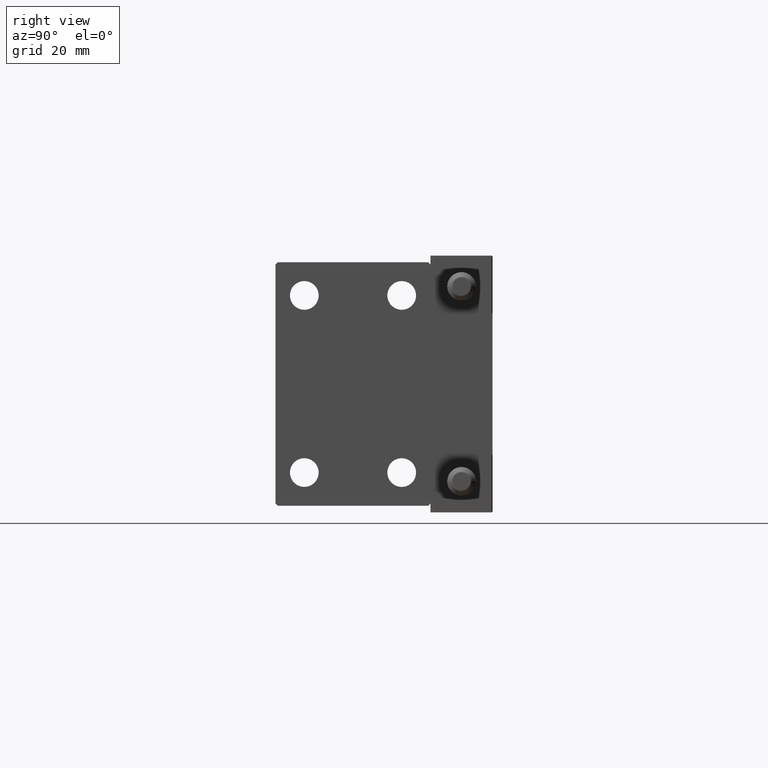
[diagram: clean part render]
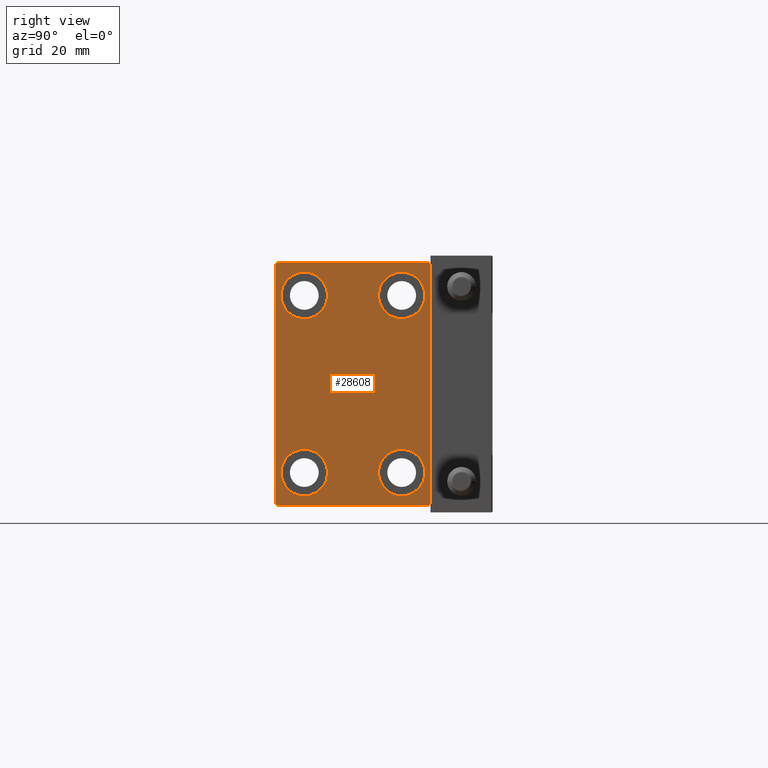
[diagram: same view with one face highlighted and labeled with its STEP entity id]
A machine part, right view. The second image highlights one B-rep face of the part: STEP entity #28608.
In plain terms, the highlighted planar face has unit normal (1, 0, 0).
Its self-contained STEP definition (entity closure, byte-faithful):
#647 = LINE ( 'NONE', #16201, #21591 ) ;
#1184 = CARTESIAN_POINT ( 'NONE',  ( 56.00000000000000000, -11.00000000000000355, 20.00000000000000000 ) ) ;
#1192 = CARTESIAN_POINT ( 'NONE',  ( 56.00000000000000000, 17.50000000000000711, -27.00000000000000355 ) ) ;
#2359 = ORIENTED_EDGE ( 'NONE', *, *, #5725, .T. ) ;
#2387 = VERTEX_POINT ( 'NONE', #43101 ) ;
#2655 = ORIENTED_EDGE ( 'NONE', *, *, #46651, .T. ) ;
#3201 = ORIENTED_EDGE ( 'NONE', *, *, #24582, .T. ) ;
#3229 = EDGE_CURVE ( 'NONE', #6748, #36708, #14350, .T. ) ;
#3535 = ORIENTED_EDGE ( 'NONE', *, *, #5372, .T. ) ;
#3954 = CARTESIAN_POINT ( 'NONE',  ( 56.00000000000000000, -17.50000000000000000, -26.99999999999999645 ) ) ;
#4540 = CIRCLE ( 'NONE', #33842, 5.250000000000000888 ) ;
#4624 = AXIS2_PLACEMENT_3D ( 'NONE', #48338, #13389, #28966 ) ;
#5020 = DIRECTION ( 'NONE',  ( 0.000000000000000000, 0.000000000000000000, 1.000000000000000000 ) ) ;
#5372 = EDGE_CURVE ( 'NONE', #40715, #18841, #647, .T. ) ;
#5725 = EDGE_CURVE ( 'NONE', #42141, #25393, #4540, .T. ) ;
#5734 = VERTEX_POINT ( 'NONE', #38608 ) ;
#6202 = AXIS2_PLACEMENT_3D ( 'NONE', #49247, #14299, #45442 ) ;
#6273 = EDGE_CURVE ( 'NONE', #23071, #15058, #10229, .T. ) ;
#6612 = ORIENTED_EDGE ( 'NONE', *, *, #9948, .T. ) ;
#6748 = VERTEX_POINT ( 'NONE', #28076 ) ;
#7500 = VECTOR ( 'NONE', #32608, 1000.000000000000114 ) ;
#7582 = ORIENTED_EDGE ( 'NONE', *, *, #42896, .T. ) ;
#7907 = VECTOR ( 'NONE', #21343, 1000.000000000000114 ) ;
#8007 = DIRECTION ( 'NONE',  ( 0.000000000000000000, 0.000000000000000000, 1.000000000000000000 ) ) ;
#8743 = DIRECTION ( 'NONE',  ( -1.000000000000000000, -0.000000000000000000, -0.000000000000000000 ) ) ;
#8802 = ORIENTED_EDGE ( 'NONE', *, *, #6273, .T. ) ;
#9914 = VECTOR ( 'NONE', #25652, 1000.000000000000114 ) ;
#9941 = EDGE_LOOP ( 'NONE', ( #25431, #2359 ) ) ;
#9948 = EDGE_CURVE ( 'NONE', #5734, #39363, #25509, .T. ) ;
#10185 = CARTESIAN_POINT ( 'NONE',  ( 56.00000000000000000, 11.00000000000000355, -20.00000000000000000 ) ) ;
#10229 = CIRCLE ( 'NONE', #49333, 5.250000000000000888 ) ;
#10342 = PLANE ( 'NONE',  #36800 ) ;
#10384 = CARTESIAN_POINT ( 'NONE',  ( 56.00000000000000000, -11.00000000000000355, 25.25000000000000000 ) ) ;
#10499 = DIRECTION ( 'NONE',  ( 0.000000000000000000, 1.000000000000000000, 0.000000000000000000 ) ) ;
#10902 = LINE ( 'NONE', #22661, #46063 ) ;
#11182 = AXIS2_PLACEMENT_3D ( 'NONE', #1184, #24416, #5020 ) ;
#11530 = LINE ( 'NONE', #13891, #9914 ) ;
#11819 = VERTEX_POINT ( 'NONE', #43793 ) ;
#12655 = EDGE_CURVE ( 'NONE', #33447, #5734, #37128, .T. ) ;
#13389 = DIRECTION ( 'NONE',  ( -1.000000000000000000, -0.000000000000000000, -0.000000000000000000 ) ) ;
#13576 = ORIENTED_EDGE ( 'NONE', *, *, #27676, .T. ) ;
#13891 = CARTESIAN_POINT ( 'NONE',  ( 56.00000000000000000, -22.25000000000000355, -22.25000000000000355 ) ) ;
#14053 = CIRCLE ( 'NONE', #24669, 5.250000000000000888 ) ;
#14070 = CARTESIAN_POINT ( 'NONE',  ( 56.00000000000000000, -11.00000000000000355, -14.75000000000000000 ) ) ;
#14299 = DIRECTION ( 'NONE',  ( -1.000000000000000000, -0.000000000000000000, -0.000000000000000000 ) ) ;
#14350 = CIRCLE ( 'NONE', #6202, 5.250000000000000888 ) ;
#14858 = EDGE_CURVE ( 'NONE', #2387, #26703, #24256, .T. ) ;
#15058 = VERTEX_POINT ( 'NONE', #23442 ) ;
#15662 = VERTEX_POINT ( 'NONE', #34723 ) ;
#16201 = CARTESIAN_POINT ( 'NONE',  ( 56.00000000000000000, 17.50000000000000711, -27.50000000000000355 ) ) ;
#16522 = CARTESIAN_POINT ( 'NONE',  ( 56.00000000000000000, -11.00000000000000355, 20.00000000000000000 ) ) ;
#18093 = DIRECTION ( 'NONE',  ( -1.000000000000000000, -0.000000000000000000, -0.000000000000000000 ) ) ;
#18508 = DIRECTION ( 'NONE',  ( 1.000000000000000000, 0.000000000000000000, 0.000000000000000000 ) ) ;
#18841 = VERTEX_POINT ( 'NONE', #23359 ) ;
#19307 = CARTESIAN_POINT ( 'NONE',  ( 56.00000000000000000, 11.00000000000000355, -25.25000000000000000 ) ) ;
#19615 = VERTEX_POINT ( 'NONE', #36687 ) ;
#20731 = DIRECTION ( 'NONE',  ( 0.000000000000000000, 0.000000000000000000, 1.000000000000000000 ) ) ;
#21343 = DIRECTION ( 'NONE',  ( 0.000000000000000000, -0.7071067811865474617, -0.7071067811865474617 ) ) ;
#21533 = DIRECTION ( 'NONE',  ( -0.000000000000000000, 0.7071067811865474617, 0.7071067811865474617 ) ) ;
#21575 = FACE_BOUND ( 'NONE', #32125, .T. ) ;
#21591 = VECTOR ( 'NONE', #27936, 1000.000000000000000 ) ;
#21620 = EDGE_LOOP ( 'NONE', ( #2655, #8802 ) ) ;
#21959 = AXIS2_PLACEMENT_3D ( 'NONE', #10185, #18093, #25759 ) ;
#22021 = EDGE_CURVE ( 'NONE', #26703, #2387, #47210, .T. ) ;
#22094 = CARTESIAN_POINT ( 'NONE',  ( 56.00000000000000000, 0.000000000000000000, 0.000000000000000000 ) ) ;
#22160 = DIRECTION ( 'NONE',  ( 0.000000000000000000, -1.000000000000000000, -1.982541115402065110E-16 ) ) ;
#22603 = FACE_BOUND ( 'NONE', #9941, .T. ) ;
#22661 = CARTESIAN_POINT ( 'NONE',  ( 56.00000000000000000, 17.50000000000000000, 27.50000000000000355 ) ) ;
#23071 = VERTEX_POINT ( 'NONE', #10384 ) ;
#23359 = CARTESIAN_POINT ( 'NONE',  ( 56.00000000000000000, 17.50000000000000000, 26.99999999999999645 ) ) ;
#23442 = CARTESIAN_POINT ( 'NONE',  ( 56.00000000000000000, -11.00000000000000355, 14.75000000000000000 ) ) ;
#23461 = AXIS2_PLACEMENT_3D ( 'NONE', #48429, #44878, #25251 ) ;
#24256 = CIRCLE ( 'NONE', #23461, 5.250000000000000888 ) ;
#24416 = DIRECTION ( 'NONE',  ( -1.000000000000000000, -0.000000000000000000, -0.000000000000000000 ) ) ;
#24582 = EDGE_CURVE ( 'NONE', #11819, #40715, #41159, .T. ) ;
#24669 = AXIS2_PLACEMENT_3D ( 'NONE', #28120, #8743, #20731 ) ;
#25029 = CIRCLE ( 'NONE', #11182, 5.250000000000000888 ) ;
#25236 = CARTESIAN_POINT ( 'NONE',  ( 56.00000000000000000, 22.25000000000000355, 22.25000000000000355 ) ) ;
#25251 = DIRECTION ( 'NONE',  ( 0.000000000000000000, 0.000000000000000000, 1.000000000000000000 ) ) ;
#25393 = VERTEX_POINT ( 'NONE', #39721 ) ;
#25431 = ORIENTED_EDGE ( 'NONE', *, *, #45994, .T. ) ;
#25509 = LINE ( 'NONE', #34153, #27351 ) ;
#25652 = DIRECTION ( 'NONE',  ( -0.000000000000000000, 0.7071067811865474617, -0.7071067811865474617 ) ) ;
#25759 = DIRECTION ( 'NONE',  ( 0.000000000000000000, 0.000000000000000000, 1.000000000000000000 ) ) ;
#26031 = DIRECTION ( 'NONE',  ( 0.000000000000000000, 0.000000000000000000, -1.000000000000000000 ) ) ;
#26177 = FACE_BOUND ( 'NONE', #21620, .T. ) ;
#26703 = VERTEX_POINT ( 'NONE', #19307 ) ;
#27147 = DIRECTION ( 'NONE',  ( -1.000000000000000000, -0.000000000000000000, -0.000000000000000000 ) ) ;
#27280 = EDGE_CURVE ( 'NONE', #18841, #15662, #36186, .T. ) ;
#27351 = VECTOR ( 'NONE', #26031, 1000.000000000000000 ) ;
#27676 = EDGE_CURVE ( 'NONE', #39363, #19615, #11530, .T. ) ;
#27936 = DIRECTION ( 'NONE',  ( 0.000000000000000000, -1.261617073437677752E-16, 1.000000000000000000 ) ) ;
#28076 = CARTESIAN_POINT ( 'NONE',  ( 56.00000000000000000, -11.00000000000000355, -25.25000000000000000 ) ) ;
#28120 = CARTESIAN_POINT ( 'NONE',  ( 56.00000000000000000, -11.00000000000000355, -20.00000000000000000 ) ) ;
#28572 = VECTOR ( 'NONE', #21533, 1000.000000000000114 ) ;
#28608 = ADVANCED_FACE ( 'NONE', ( #21575, #26177, #22603, #37876, #38142 ), #10342, .T. ) ;
#28966 = DIRECTION ( 'NONE',  ( 0.000000000000000000, 0.000000000000000000, 1.000000000000000000 ) ) ;
#30325 = ORIENTED_EDGE ( 'NONE', *, *, #3229, .T. ) ;
#32125 = EDGE_LOOP ( 'NONE', ( #42826, #47126 ) ) ;
#32368 = ORIENTED_EDGE ( 'NONE', *, *, #12655, .T. ) ;
#32461 = ORIENTED_EDGE ( 'NONE', *, *, #35742, .T. ) ;
#32608 = DIRECTION ( 'NONE',  ( -0.000000000000000000, -0.7071067811865474617, 0.7071067811865474617 ) ) ;
#32810 = ORIENTED_EDGE ( 'NONE', *, *, #27280, .T. ) ;
#33447 = VERTEX_POINT ( 'NONE', #43707 ) ;
#33842 = AXIS2_PLACEMENT_3D ( 'NONE', #39602, #27147, #8007 ) ;
#34051 = DIRECTION ( 'NONE',  ( 0.000000000000000000, 0.000000000000000000, -1.000000000000000000 ) ) ;
#34153 = CARTESIAN_POINT ( 'NONE',  ( 56.00000000000000000, -17.50000000000000000, 27.49999999999999645 ) ) ;
#34723 = CARTESIAN_POINT ( 'NONE',  ( 56.00000000000000000, 16.99999999999999289, 27.50000000000000355 ) ) ;
#34915 = ORIENTED_EDGE ( 'NONE', *, *, #35881, .T. ) ;
#35742 = EDGE_CURVE ( 'NONE', #36708, #6748, #14053, .T. ) ;
#35881 = EDGE_CURVE ( 'NONE', #19615, #11819, #36759, .T. ) ;
#36186 = LINE ( 'NONE', #25236, #7500 ) ;
#36539 = EDGE_LOOP ( 'NONE', ( #30325, #32461 ) ) ;
#36687 = CARTESIAN_POINT ( 'NONE',  ( 56.00000000000000000, -16.99999999999999289, -27.50000000000000355 ) ) ;
#36708 = VERTEX_POINT ( 'NONE', #14070 ) ;
#36759 = LINE ( 'NONE', #41108, #42581 ) ;
#36800 = AXIS2_PLACEMENT_3D ( 'NONE', #22094, #18508, #34051 ) ;
#37128 = LINE ( 'NONE', #40971, #7907 ) ;
#37876 = FACE_BOUND ( 'NONE', #36539, .T. ) ;
#38142 = FACE_OUTER_BOUND ( 'NONE', #44561, .T. ) ;
#38608 = CARTESIAN_POINT ( 'NONE',  ( 56.00000000000000000, -17.50000000000000000, 26.99999999999998934 ) ) ;
#39363 = VERTEX_POINT ( 'NONE', #3954 ) ;
#39602 = CARTESIAN_POINT ( 'NONE',  ( 56.00000000000000000, 11.00000000000000355, 20.00000000000000000 ) ) ;
#39721 = CARTESIAN_POINT ( 'NONE',  ( 56.00000000000000000, 11.00000000000000355, 14.75000000000000000 ) ) ;
#40715 = VERTEX_POINT ( 'NONE', #1192 ) ;
#40971 = CARTESIAN_POINT ( 'NONE',  ( 56.00000000000000000, -22.24999999999999645, 22.24999999999999645 ) ) ;
#41108 = CARTESIAN_POINT ( 'NONE',  ( 56.00000000000000000, -17.50000000000000000, -27.50000000000000355 ) ) ;
#41159 = LINE ( 'NONE', #48297, #28572 ) ;
#42141 = VERTEX_POINT ( 'NONE', #47043 ) ;
#42581 = VECTOR ( 'NONE', #10499, 1000.000000000000000 ) ;
#42826 = ORIENTED_EDGE ( 'NONE', *, *, #22021, .T. ) ;
#42896 = EDGE_CURVE ( 'NONE', #15662, #33447, #10902, .T. ) ;
#43101 = CARTESIAN_POINT ( 'NONE',  ( 56.00000000000000000, 11.00000000000000355, -14.75000000000000000 ) ) ;
#43707 = CARTESIAN_POINT ( 'NONE',  ( 56.00000000000000000, -16.99999999999999289, 27.49999999999999645 ) ) ;
#43793 = CARTESIAN_POINT ( 'NONE',  ( 56.00000000000000000, 17.00000000000000711, -27.50000000000000355 ) ) ;
#43821 = DIRECTION ( 'NONE',  ( -1.000000000000000000, -0.000000000000000000, -0.000000000000000000 ) ) ;
#44561 = EDGE_LOOP ( 'NONE', ( #7582, #32368, #6612, #13576, #34915, #3201, #3535, #32810 ) ) ;
#44878 = DIRECTION ( 'NONE',  ( -1.000000000000000000, -0.000000000000000000, -0.000000000000000000 ) ) ;
#45442 = DIRECTION ( 'NONE',  ( 0.000000000000000000, 0.000000000000000000, 1.000000000000000000 ) ) ;
#45994 = EDGE_CURVE ( 'NONE', #25393, #42141, #48592, .T. ) ;
#46063 = VECTOR ( 'NONE', #22160, 1000.000000000000000 ) ;
#46651 = EDGE_CURVE ( 'NONE', #15058, #23071, #25029, .T. ) ;
#47043 = CARTESIAN_POINT ( 'NONE',  ( 56.00000000000000000, 11.00000000000000355, 25.25000000000000000 ) ) ;
#47126 = ORIENTED_EDGE ( 'NONE', *, *, #14858, .T. ) ;
#47210 = CIRCLE ( 'NONE', #21959, 5.250000000000000888 ) ;
#48297 = CARTESIAN_POINT ( 'NONE',  ( 56.00000000000000000, 22.25000000000000711, -22.25000000000000711 ) ) ;
#48338 = CARTESIAN_POINT ( 'NONE',  ( 56.00000000000000000, 11.00000000000000355, 20.00000000000000000 ) ) ;
#48377 = DIRECTION ( 'NONE',  ( 0.000000000000000000, 0.000000000000000000, 1.000000000000000000 ) ) ;
#48429 = CARTESIAN_POINT ( 'NONE',  ( 56.00000000000000000, 11.00000000000000355, -20.00000000000000000 ) ) ;
#48592 = CIRCLE ( 'NONE', #4624, 5.250000000000000888 ) ;
#49247 = CARTESIAN_POINT ( 'NONE',  ( 56.00000000000000000, -11.00000000000000355, -20.00000000000000000 ) ) ;
#49333 = AXIS2_PLACEMENT_3D ( 'NONE', #16522, #43821, #48377 ) ;